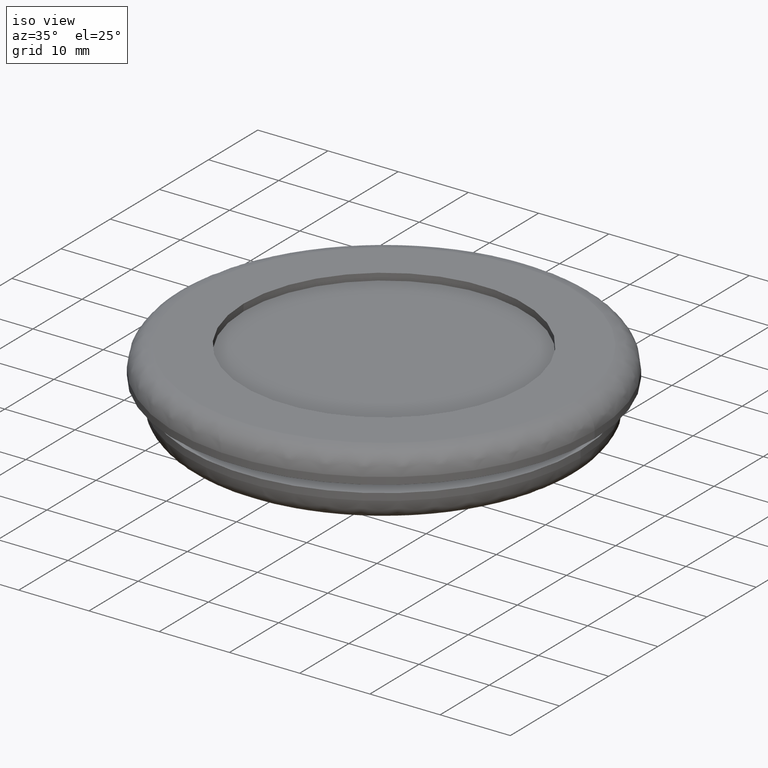
[diagram: clean part render]
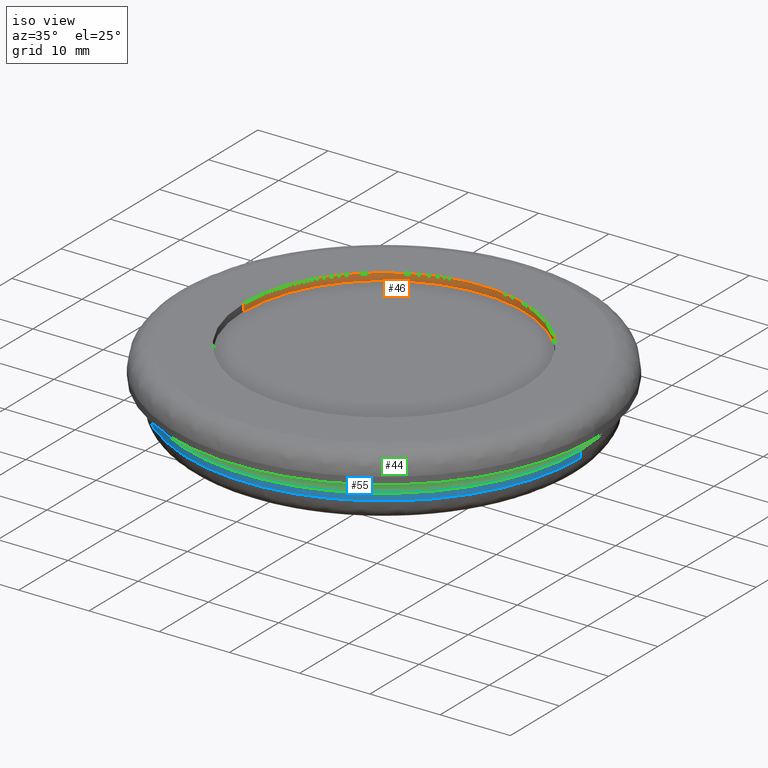
[diagram: same view with three faces highlighted in distinct colors, each labeled with its STEP entity id]
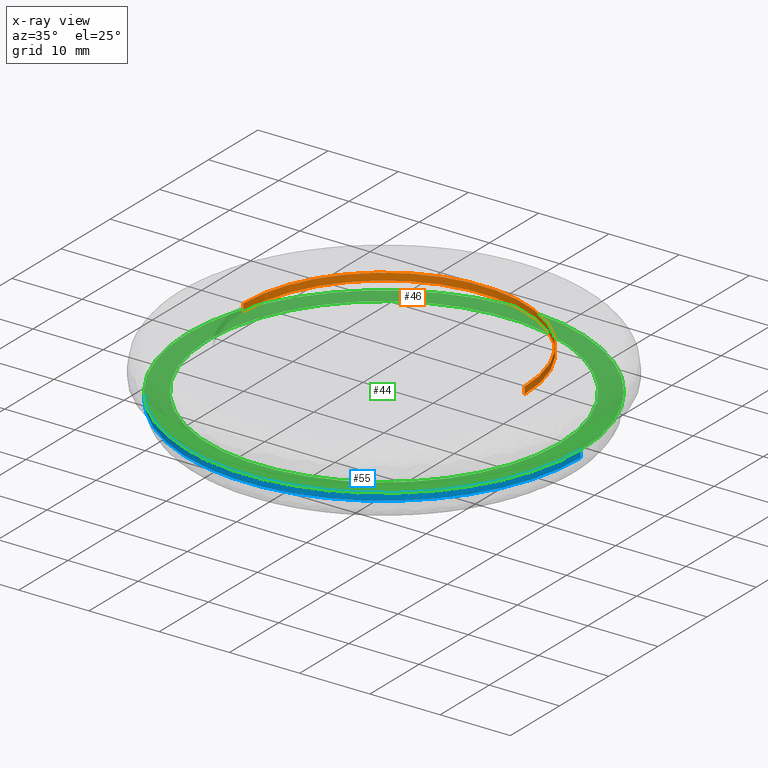
[diagram: x-ray of the same camera — body ghosted, the three highlighted faces saturated]
A machine part, iso view with three faces highlighted in distinct colors.
The next image is the same camera in x-ray (body ghosted, the three faces saturated) — at least one of them is partly hidden behind the body in this view.
Their STEP definitions:

[orange] entity #46 — the highlighted cylindrical surface (partial cylindrical patch) has radius 20 mm, axis along (0, -0, 1).
#46=ADVANCED_FACE('',(#125),#124,.F.);
#124=CYLINDRICAL_SURFACE('',#301,2.00000000000E+01);
#125=FACE_OUTER_BOUND('',#302,.T.);
#298=CARTESIAN_POINT('',(-1.19371179608E-12,0.00000000000E+00,0.00000000000E+00));
#299=DIRECTION('',(0.00000000000E+00,-0.00000000000E+00,1.00000000000E+00));
#300=DIRECTION('',(1.00000000000E+00,-0.00000000000E+00,-0.00000000000E+00));
#301=AXIS2_PLACEMENT_3D('',#298,#299,#300);
#302=EDGE_LOOP('',(#472,#473,#474,#475));
#472=ORIENTED_EDGE('',*,*,#529,.T.);
#473=ORIENTED_EDGE('',*,*,#548,.T.);
#474=ORIENTED_EDGE('',*,*,#534,.F.);
#475=ORIENTED_EDGE('',*,*,#549,.F.);
#529=EDGE_CURVE('',#567,#566,#574,.T.);
#534=EDGE_CURVE('',#608,#609,#610,.T.);
#548=EDGE_CURVE('',#566,#609,#706,.T.);
#549=EDGE_CURVE('',#567,#608,#712,.T.);
#566=VERTEX_POINT('',#818);
#567=VERTEX_POINT('',#819);
#574=CIRCLE('',#827,2.00000000000E+01);
#608=VERTEX_POINT('',#848);
#609=VERTEX_POINT('',#849);
#610=CIRCLE('',#853,2.00000000000E+01);
#706=(BOUNDED_CURVE() B_SPLINE_CURVE(1,(#918,#919),.UNSPECIFIED.,.F.,.F.) B_SPLINE_CURVE_WITH_KNOTS((2,2),(8.33332935974E-02,9.16666633252E-01),.UNSPECIFIED.) CURVE() GEOMETRIC_REPRESENTATION_ITEM() RATIONAL_B_SPLINE_CURVE((1.00000000000E+00,1.00000000000E+00)) REPRESENTATION_ITEM('') );
#712=(BOUNDED_CURVE() B_SPLINE_CURVE(1,(#920,#921),.UNSPECIFIED.,.F.,.F.) B_SPLINE_CURVE_WITH_KNOTS((2,2),(8.33333333333E-02,9.16666666667E-01),.UNSPECIFIED.) CURVE() GEOMETRIC_REPRESENTATION_ITEM() RATIONAL_B_SPLINE_CURVE((7.50000000000E-01,7.50000000000E-01)) REPRESENTATION_ITEM('') );
#818=CARTESIAN_POINT('',(2.00000000000E+01,0.00000000000E+00,-1.00000000000E+00));
#819=CARTESIAN_POINT('',(-2.00000000000E+01,0.00000000000E+00,-1.00000000000E+00));
#824=CARTESIAN_POINT('',(-1.19371179608E-12,0.00000000000E+00,-1.00000000000E+00));
#825=DIRECTION('',(-0.00000000000E+00,0.00000000000E+00,-1.00000000000E+00));
#826=DIRECTION('',(-1.00000000000E+00,-1.22460635382E-16,0.00000000000E+00));
#827=AXIS2_PLACEMENT_3D('',#824,#825,#826);
#848=CARTESIAN_POINT('',(-2.00000000000E+01,0.00000000000E+00,-2.84217094299E-14));
#849=CARTESIAN_POINT('',(2.00000000000E+01,0.00000000000E+00,-2.84217094299E-14));
#850=CARTESIAN_POINT('',(-1.19371179608E-12,0.00000000000E+00,-2.84217094299E-14));
#851=DIRECTION('',(-0.00000000000E+00,0.00000000000E+00,-1.00000000000E+00));
#852=DIRECTION('',(-1.00000000000E+00,-1.22460635382E-16,0.00000000000E+00));
#853=AXIS2_PLACEMENT_3D('',#850,#851,#852);
#918=CARTESIAN_POINT('',(2.00000000000E+01,0.00000000000E+00,-1.00000004768E+00));
#919=CARTESIAN_POINT('',(2.00000000000E+01,0.00000000000E+00,-4.00981909898E-08));
#920=CARTESIAN_POINT('',(-2.00000000000E+01,-2.36847578587E-15,-1.00000000000E+00));
#921=CARTESIAN_POINT('',(-2.00000000000E+01,-2.36847578587E-15,-2.83661982792E-14));

[blue] entity #55 — the highlighted cylindrical surface (partial cylindrical patch) has radius 28 mm, axis along (0, -0, 1).
#55=ADVANCED_FACE('',(#215),#214,.T.);
#214=CYLINDRICAL_SURFACE('',#388,2.80000000000E+01);
#215=FACE_OUTER_BOUND('',#389,.T.);
#385=CARTESIAN_POINT('',(-1.19371179608E-12,0.00000000000E+00,0.00000000000E+00));
#386=DIRECTION('',(0.00000000000E+00,-0.00000000000E+00,1.00000000000E+00));
#387=DIRECTION('',(1.00000000000E+00,-0.00000000000E+00,-0.00000000000E+00));
#388=AXIS2_PLACEMENT_3D('',#385,#386,#387);
#389=EDGE_LOOP('',(#508,#509,#510,#511));
#508=ORIENTED_EDGE('',*,*,#561,.F.);
#509=ORIENTED_EDGE('',*,*,#558,.T.);
#510=ORIENTED_EDGE('',*,*,#540,.T.);
#511=ORIENTED_EDGE('',*,*,#560,.F.);
#540=EDGE_CURVE('',#650,#651,#652,.T.);
#558=EDGE_CURVE('',#768,#650,#769,.T.);
#560=EDGE_CURVE('',#775,#651,#782,.T.);
#561=EDGE_CURVE('',#768,#775,#788,.T.);
#650=VERTEX_POINT('',#878);
#651=VERTEX_POINT('',#879);
#652=CIRCLE('',#883,2.80000000000E+01);
#768=VERTEX_POINT('',#948);
#769=(BOUNDED_CURVE() B_SPLINE_CURVE(1,(#949,#950),.UNSPECIFIED.,.F.,.F.) B_SPLINE_CURVE_WITH_KNOTS((2,2),(8.33332935974E-02,9.16666633252E-01),.UNSPECIFIED.) CURVE() GEOMETRIC_REPRESENTATION_ITEM() RATIONAL_B_SPLINE_CURVE((1.00000000000E+00,1.00000000000E+00)) REPRESENTATION_ITEM('') );
#775=VERTEX_POINT('',#951);
#782=(BOUNDED_CURVE() B_SPLINE_CURVE(1,(#956,#957),.UNSPECIFIED.,.F.,.F.) B_SPLINE_CURVE_WITH_KNOTS((2,2),(8.33333333333E-02,9.16666666667E-01),.UNSPECIFIED.) CURVE() GEOMETRIC_REPRESENTATION_ITEM() RATIONAL_B_SPLINE_CURVE((7.50000000000E-01,7.50000000000E-01)) REPRESENTATION_ITEM('') );
#788=CIRCLE('',#961,2.80000000000E+01);
#878=CARTESIAN_POINT('',(2.80000000000E+01,1.18423789293E-15,-6.00000000001E+00));
#879=CARTESIAN_POINT('',(-2.80000000000E+01,0.00000000000E+00,-6.00000000001E+00));
#880=CARTESIAN_POINT('',(-1.19371179608E-12,0.00000000000E+00,-6.00000000001E+00));
#881=DIRECTION('',(-0.00000000000E+00,0.00000000000E+00,-1.00000000000E+00));
#882=DIRECTION('',(-1.00000000000E+00,-1.22460635382E-16,0.00000000000E+00));
#883=AXIS2_PLACEMENT_3D('',#880,#881,#882);
#948=CARTESIAN_POINT('',(2.80000000000E+01,1.18423789293E-15,-7.00000000000E+00));
#949=CARTESIAN_POINT('',(2.80000000000E+01,0.00000000000E+00,-7.00000004768E+00));
#950=CARTESIAN_POINT('',(2.80000000000E+01,0.00000000000E+00,-6.00000004010E+00));
#951=CARTESIAN_POINT('',(-2.80000000000E+01,0.00000000000E+00,-7.00000000000E+00));
#956=CARTESIAN_POINT('',(-2.80000000000E+01,0.00000000000E+00,-7.00000000000E+00));
#957=CARTESIAN_POINT('',(-2.80000000000E+01,0.00000000000E+00,-6.00000000001E+00));
#958=CARTESIAN_POINT('',(-1.19371179608E-12,0.00000000000E+00,-7.00000000000E+00));
#959=DIRECTION('',(-0.00000000000E+00,0.00000000000E+00,-1.00000000000E+00));
#960=DIRECTION('',(-1.00000000000E+00,-1.22460635382E-16,0.00000000000E+00));
#961=AXIS2_PLACEMENT_3D('',#958,#959,#960);

[green] entity #44 — the highlighted planar face has unit normal (-0, 0, -1).
#44=ADVANCED_FACE('',(#103,#104),#102,.F.);
#102=PLANE('',#289);
#103=FACE_OUTER_BOUND('',#290,.T.);
#104=FACE_BOUND('',#291,.T.);
#286=CARTESIAN_POINT('',(6.44000000000E+01,-5.81969071343E+01,-6.00000000001E+00));
#287=DIRECTION('',(-0.00000000000E+00,0.00000000000E+00,-1.00000000000E+00));
#288=DIRECTION('',(-1.00000000000E+00,0.00000000000E+00,0.00000000000E+00));
#289=AXIS2_PLACEMENT_3D('',#286,#287,#288);
#290=EDGE_LOOP('',(#464,#465));
#291=EDGE_LOOP('',(#466,#467));
#464=ORIENTED_EDGE('',*,*,#540,.F.);
#465=ORIENTED_EDGE('',*,*,#541,.F.);
#466=ORIENTED_EDGE('',*,*,#542,.T.);
#467=ORIENTED_EDGE('',*,*,#543,.T.);
#540=EDGE_CURVE('',#650,#651,#652,.T.);
#541=EDGE_CURVE('',#651,#650,#658,.T.);
#542=EDGE_CURVE('',#664,#665,#666,.T.);
#543=EDGE_CURVE('',#665,#664,#672,.T.);
#650=VERTEX_POINT('',#878);
#651=VERTEX_POINT('',#879);
#652=CIRCLE('',#883,2.80000000000E+01);
#658=CIRCLE('',#887,2.80000000000E+01);
#664=VERTEX_POINT('',#888);
#665=VERTEX_POINT('',#889);
#666=CIRCLE('',#893,2.50000000000E+01);
#672=CIRCLE('',#897,2.50000000000E+01);
#878=CARTESIAN_POINT('',(2.80000000000E+01,1.18423789293E-15,-6.00000000001E+00));
#879=CARTESIAN_POINT('',(-2.80000000000E+01,0.00000000000E+00,-6.00000000001E+00));
#880=CARTESIAN_POINT('',(-1.19371179608E-12,0.00000000000E+00,-6.00000000001E+00));
#881=DIRECTION('',(-0.00000000000E+00,0.00000000000E+00,-1.00000000000E+00));
#882=DIRECTION('',(-1.00000000000E+00,-1.22460635382E-16,0.00000000000E+00));
#883=AXIS2_PLACEMENT_3D('',#880,#881,#882);
#884=CARTESIAN_POINT('',(-1.19371179608E-12,0.00000000000E+00,-6.00000000001E+00));
#885=DIRECTION('',(-0.00000000000E+00,0.00000000000E+00,-1.00000000000E+00));
#886=DIRECTION('',(-1.00000000000E+00,-1.22460635382E-16,0.00000000000E+00));
#887=AXIS2_PLACEMENT_3D('',#884,#885,#886);
#888=CARTESIAN_POINT('',(-2.50000000000E+01,0.00000000000E+00,-6.00000000001E+00));
#889=CARTESIAN_POINT('',(2.50000000000E+01,-1.18423789293E-15,-6.00000000001E+00));
#890=CARTESIAN_POINT('',(-1.19371179608E-12,0.00000000000E+00,-6.00000000001E+00));
#891=DIRECTION('',(-0.00000000000E+00,0.00000000000E+00,-1.00000000000E+00));
#892=DIRECTION('',(-1.00000000000E+00,-1.22460635382E-16,0.00000000000E+00));
#893=AXIS2_PLACEMENT_3D('',#890,#891,#892);
#894=CARTESIAN_POINT('',(-1.19371179608E-12,0.00000000000E+00,-6.00000000001E+00));
#895=DIRECTION('',(-0.00000000000E+00,0.00000000000E+00,-1.00000000000E+00));
#896=DIRECTION('',(-1.00000000000E+00,-1.22460635382E-16,0.00000000000E+00));
#897=AXIS2_PLACEMENT_3D('',#894,#895,#896);